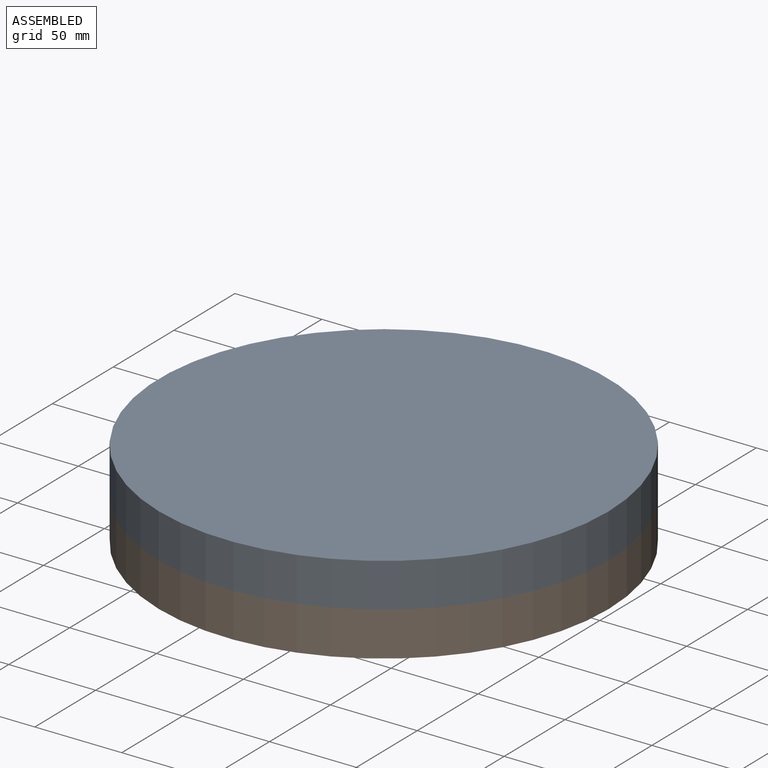
[diagram: assembled view]
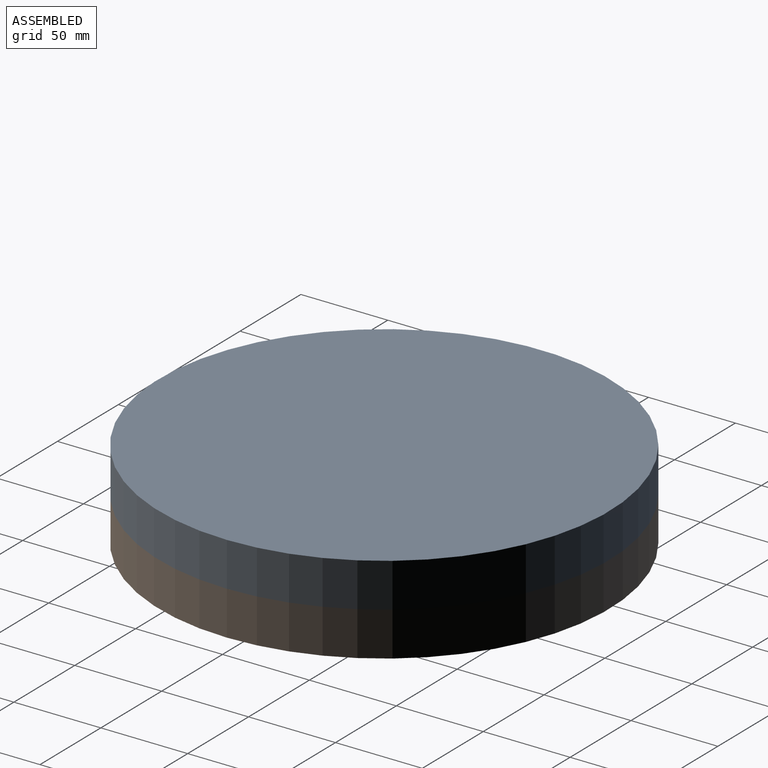
[diagram: assembled view, second angle]
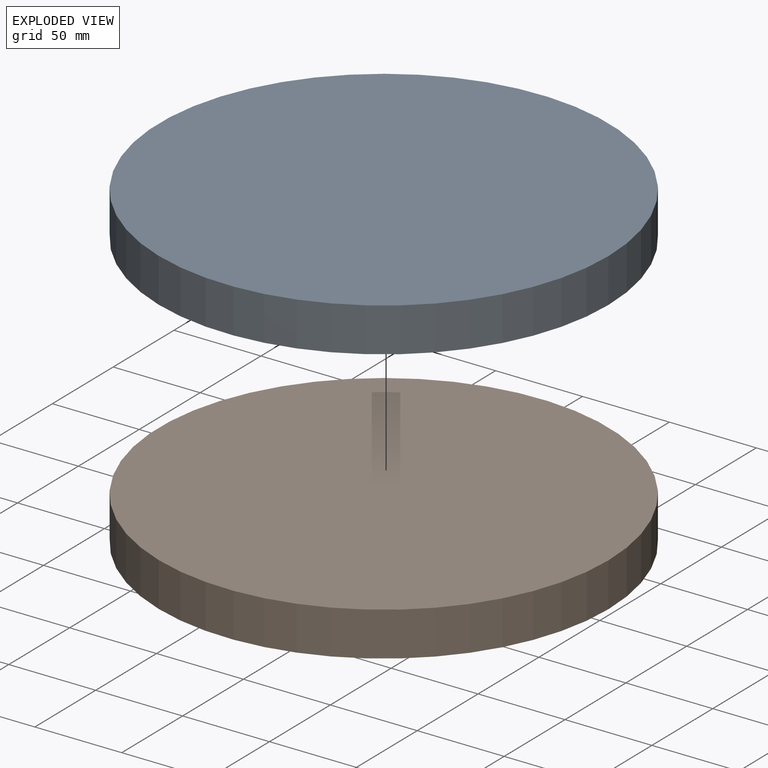
[diagram: exploded view]
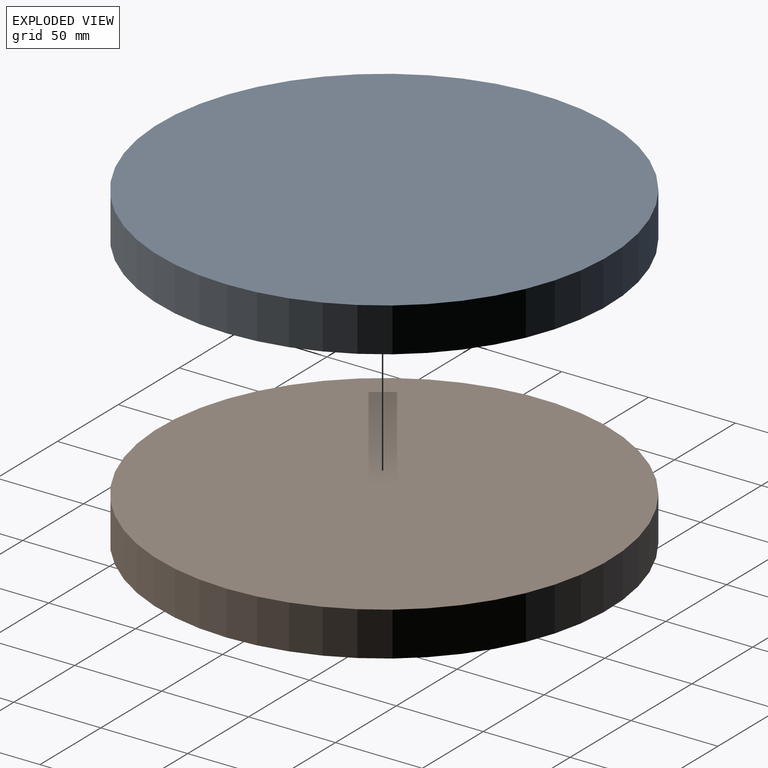
[diagram: exploded view, second angle]
ASSEMBLY  parts=2 mates=3
PART A: 3 faces, bbox 258.5x258.5x25.4 mm
  f0: cylinder r=129.25mm len=258.51mm, axis (0,0,-1), area 20628mm2, adj f1,f2
  f1: plane 258.51x258.51mm, normal (0,0,1), area 52485.3mm2, adj f0
  f2: plane 258.51x258.51mm, normal (0,0,-1), area 52485.3mm2, adj f0
PART B: same geometry as A
PLACE A t=(112.96,-14.31,-26.84)mm
PLACE B t=(112.96,-14.31,-52.24)mm
MATE cylindrical A.f0 <-> B.f0  axis (0,0,-1) through (-3.61,-29.52,-26.84)mm
MATE fastened A.f0 <-> B.f0  axis (0,0,-1) through (-3.61,-29.52,-26.84)mm
MATE slider A.f0 <-> B.f0  axis (0,0,-1) through (-3.61,-29.52,-26.84)mm
